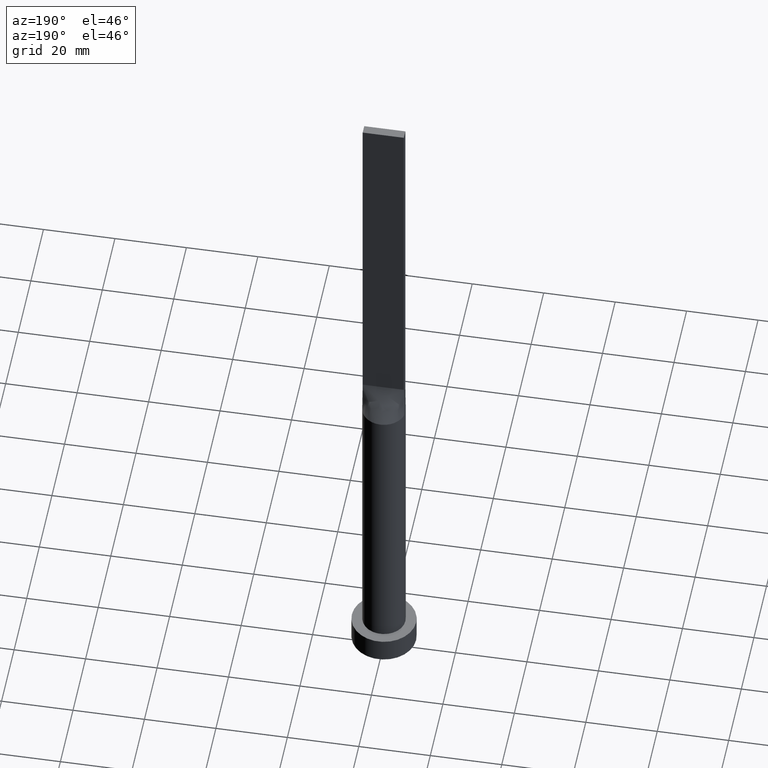
[diagram: clean part render]
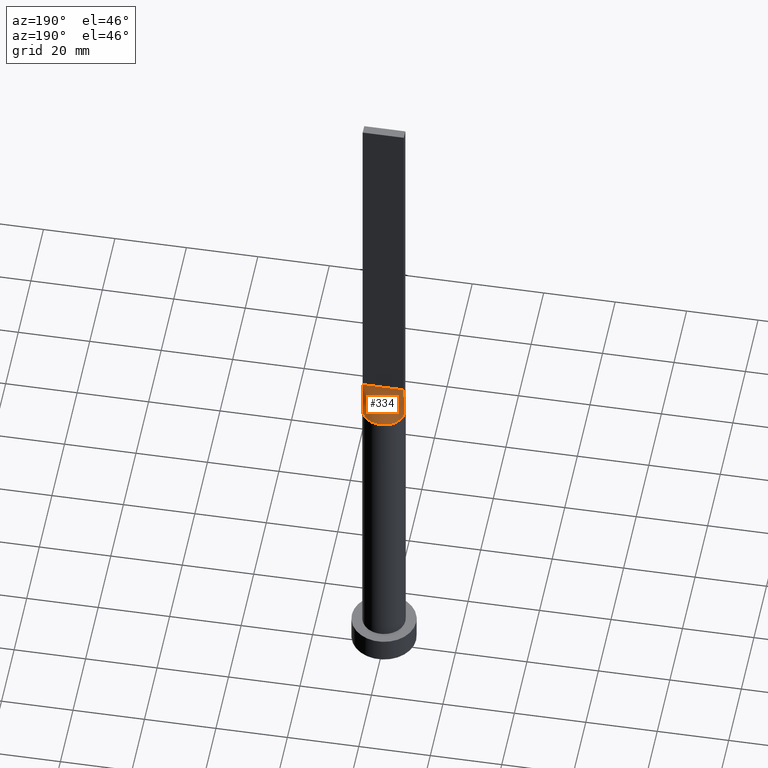
[diagram: same view with one face highlighted and labeled with its STEP entity id]
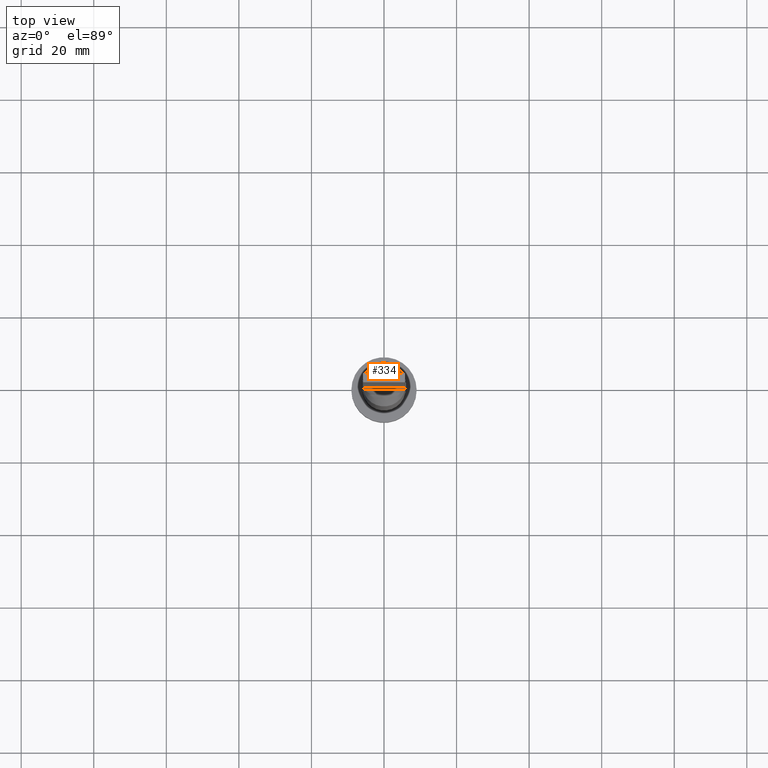
[diagram: same view with one face highlighted and labeled with its STEP entity id]
A machine part, auxiliary view. The second image highlights one B-rep face of the part: STEP entity #334.
A second angle (top view) of the same face is appended — the face is thin or edge-on in the first view.
In plain terms, the highlighted face is a freeform B-spline surface patch.
Its self-contained STEP definition (entity closure, byte-faithful):
#20 = CARTESIAN_POINT ( 'NONE',  ( -0.4791666666666711816, 1.250000000000000222, 100.0000000000000000 ) ) ;
#21 = CARTESIAN_POINT ( 'NONE',  ( 3.037647739454305995, 5.231880992812856235, 90.00000000000002842 ) ) ;
#24 = CARTESIAN_POINT ( 'NONE',  ( 5.038190104264874236, 3.311355329404293002, 90.00000000000004263 ) ) ;
#26 = CARTESIAN_POINT ( 'NONE',  ( 5.038190104264874236, 3.311355329404293002, 90.00000000000004263 ) ) ;
#28 = CARTESIAN_POINT ( 'NONE',  ( -5.270833333333333925, 1.250000000000000222, 100.0000000000000000 ) ) ;
#30 = CARTESIAN_POINT ( 'NONE',  ( -5.038190104264874236, 3.311355329404293446, 90.00000000000001421 ) ) ;
#37 = CARTESIAN_POINT ( 'NONE',  ( -0.4029827085191223790, 5.999999999999998224, 90.00000000000002842 ) ) ;
#42 = CARTESIAN_POINT ( 'NONE',  ( -5.759267569818392829, 1.752014689090956256, 90.00000000000002842 ) ) ;
#43 = VERTEX_POINT ( 'NONE', #543 ) ;
#44 = CARTESIAN_POINT ( 'NONE',  ( 5.806529091768402928, 1.262288932993131496, 95.00000000000000000 ) ) ;
#59 = LINE ( 'NONE', #519, #326 ) ;
#65 = CARTESIAN_POINT ( 'NONE',  ( 5.750000000000000000, 1.250000000000000222, 100.0000000000000000 ) ) ;
#68 = CARTESIAN_POINT ( 'NONE',  ( 0.9583333333333283743, 1.250000000000000222, 100.0000000000000000 ) ) ;
#71 = CARTESIAN_POINT ( 'NONE',  ( 4.791666666666664298, 1.250000000000000222, 100.0000000000000000 ) ) ;
#73 = CARTESIAN_POINT ( 'NONE',  ( 0.8058840496048939039, 5.959001506938069070, 90.00000000000002842 ) ) ;
#74 = B_SPLINE_SURFACE_WITH_KNOTS ( 'NONE', 3, 1, ( 
 ( #439, #65 ),
 ( #210, #482 ),
 ( #528, #71 ),
 ( #24, #248 ),
 ( #157, #169 ),
 ( #400, #492 ),
 ( #348, #212 ),
 ( #445, #207 ),
 ( #300, #68 ),
 ( #73, #256 ),
 ( #534, #254 ),
 ( #396, #435 ),
 ( #579, #20 ),
 ( #112, #161 ),
 ( #351, #205 ),
 ( #114, #356 ),
 ( #586, #76 ),
 ( #487, #398 ),
 ( #30, #392 ),
 ( #536, #252 ),
 ( #110, #28 ),
 ( #117, #303 ) ),
 .UNSPECIFIED., .F., .F., .F.,
 ( 4, 2, 2, 2, 2, 2, 2, 2, 2, 2, 4 ),
 ( 2, 2 ),
 ( 0.000000000000000000, 0.1249999999999999722, 0.2499999999999999445, 0.3749999999999999445, 0.4374999999999999445, 0.4999999999999998890, 0.5624999999999998890, 0.6249999999999998890, 0.7499999999999997780, 0.8749999999999998890, 1.000000000000000000 ),
 ( 0.000000000000000000, 1.000000000000000000 ),
 .UNSPECIFIED. ) ;
#76 = CARTESIAN_POINT ( 'NONE',  ( -2.395833333333335702, 1.250000000000000222, 100.0000000000000000 ) ) ;
#77 = CARTESIAN_POINT ( 'NONE',  ( 5.863058183536806744, 1.274577865986262326, 90.00000000000001421 ) ) ;
#79 = CARTESIAN_POINT ( 'NONE',  ( 5.586898165904734093, 2.266054396544147309, 90.00000000000002842 ) ) ;
#83 = VECTOR ( 'NONE', #484, 1000.000000000000000 ) ;
#104 = CARTESIAN_POINT ( 'NONE',  ( 5.750000000000000000, 1.250000000000000222, 100.0000000000000000 ) ) ;
#106 = ORIENTED_EDGE ( 'NONE', *, *, #108, .T. ) ;
#108 = EDGE_CURVE ( 'NONE', #43, #540, #168, .T. ) ;
#110 = CARTESIAN_POINT ( 'NONE',  ( -5.759267569818392829, 1.752014689090956256, 90.00000000000002842 ) ) ;
#111 = EDGE_LOOP ( 'NONE', ( #106, #143, #284, #460 ) ) ;
#112 = CARTESIAN_POINT ( 'NONE',  ( -1.587717880441007035, 5.799853445840308375, 90.00000000000001421 ) ) ;
#114 = CARTESIAN_POINT ( 'NONE',  ( -3.037647739454304663, 5.231880992812857123, 90.00000000000007105 ) ) ;
#117 = CARTESIAN_POINT ( 'NONE',  ( -5.863058183536805856, 1.274577865986265435, 90.00000000000001421 ) ) ;
#136 = VERTEX_POINT ( 'NONE', #502 ) ;
#143 = ORIENTED_EDGE ( 'NONE', *, *, #239, .T. ) ;
#157 = CARTESIAN_POINT ( 'NONE',  ( 4.659826596530313836, 3.842755878357678068, 90.00000000000002842 ) ) ;
#161 = CARTESIAN_POINT ( 'NONE',  ( -0.9583333333333372561, 1.250000000000000222, 100.0000000000000000 ) ) ;
#168 = B_SPLINE_CURVE_WITH_KNOTS ( 'NONE', 3,
 ( #77, #255, #79, #26, #539, #263, #21, #537, #306, #206, #265, #37, #225, #453, #218, #369, #412, #312, #271, #459, #42, #174 ),
 .UNSPECIFIED., .F., .F.,
 ( 4, 2, 2, 2, 2, 2, 2, 2, 2, 2, 4 ),
 ( 0.000000000000000000, 0.1249999999999999722, 0.2499999999999999445, 0.3749999999999999445, 0.4374999999999999445, 0.4999999999999998890, 0.5624999999999998890, 0.6249999999999998890, 0.7499999999999997780, 0.8749999999999998890, 1.000000000000000000 ),
 .UNSPECIFIED. ) ;
#169 = CARTESIAN_POINT ( 'NONE',  ( 3.354166666666662966, 1.250000000000000222, 100.0000000000000000 ) ) ;
#174 = CARTESIAN_POINT ( 'NONE',  ( -5.863058287509749888, 1.274577880478287017, 90.00000000000001421 ) ) ;
#205 = CARTESIAN_POINT ( 'NONE',  ( -1.197916666666670515, 1.250000000000000222, 100.0000000000000000 ) ) ;
#206 = CARTESIAN_POINT ( 'NONE',  ( 0.8058840496048939039, 5.959001506938069070, 90.00000000000002842 ) ) ;
#207 = CARTESIAN_POINT ( 'NONE',  ( 1.197916666666661856, 1.250000000000000222, 100.0000000000000000 ) ) ;
#210 = CARTESIAN_POINT ( 'NONE',  ( 5.759267569818392829, 1.752014689090955590, 90.00000000000002842 ) ) ;
#212 = CARTESIAN_POINT ( 'NONE',  ( 1.916666666666662078, 1.250000000000000222, 100.0000000000000000 ) ) ;
#215 = FACE_OUTER_BOUND ( 'NONE', #111, .T. ) ;
#218 = CARTESIAN_POINT ( 'NONE',  ( -1.966519853258818173, 5.681792876789067748, 90.00000000000001421 ) ) ;
#225 = CARTESIAN_POINT ( 'NONE',  ( -0.8058840496048931268, 5.959001506938069070, 90.00000000000001421 ) ) ;
#239 = EDGE_CURVE ( 'NONE', #540, #136, #59, .T. ) ;
#240 = VERTEX_POINT ( 'NONE', #104 ) ;
#248 = CARTESIAN_POINT ( 'NONE',  ( 3.833333333333329929, 1.250000000000000222, 100.0000000000000000 ) ) ;
#252 = CARTESIAN_POINT ( 'NONE',  ( -4.791666666666666963, 1.250000000000000222, 100.0000000000000000 ) ) ;
#254 = CARTESIAN_POINT ( 'NONE',  ( 0.2395833333333281245, 1.250000000000000222, 100.0000000000000000 ) ) ;
#255 = CARTESIAN_POINT ( 'NONE',  ( 5.759267569818392829, 1.752014689090955590, 90.00000000000002842 ) ) ;
#256 = CARTESIAN_POINT ( 'NONE',  ( 0.4791666666666616337, 1.250000000000000222, 100.0000000000000000 ) ) ;
#260 = CARTESIAN_POINT ( 'NONE',  ( -5.750000000000000000, 1.250000000000000222, 100.0000000000000000 ) ) ;
#263 = CARTESIAN_POINT ( 'NONE',  ( 3.660567483996337579, 4.804269179125218336, 90.00000000000002842 ) ) ;
#265 = CARTESIAN_POINT ( 'NONE',  ( 0.4029827085191226566, 5.999999999999999112, 90.00000000000002842 ) ) ;
#271 = CARTESIAN_POINT ( 'NONE',  ( -5.038190104264874236, 3.311355329404293446, 90.00000000000001421 ) ) ;
#273 = LINE ( 'NONE', #44, #395 ) ;
#284 = ORIENTED_EDGE ( 'NONE', *, *, #378, .F. ) ;
#300 = CARTESIAN_POINT ( 'NONE',  ( 1.587717880441007479, 5.799853445840305710, 90.00000000000000000 ) ) ;
#303 = CARTESIAN_POINT ( 'NONE',  ( -5.750000000000000000, 1.250000000000000222, 100.0000000000000000 ) ) ;
#306 = CARTESIAN_POINT ( 'NONE',  ( 1.587717880441007479, 5.799853445840305710, 90.00000000000000000 ) ) ;
#312 = CARTESIAN_POINT ( 'NONE',  ( -4.659826596530312948, 3.842755878357679844, 90.00000000000001421 ) ) ;
#326 = VECTOR ( 'NONE', #524, 1000.000000000000114 ) ;
#334 = ADVANCED_FACE ( 'NONE', ( #215 ), #74, .T. ) ;
#348 = CARTESIAN_POINT ( 'NONE',  ( 3.037647739454305995, 5.231880992812856235, 90.00000000000002842 ) ) ;
#351 = CARTESIAN_POINT ( 'NONE',  ( -1.966519853258818173, 5.681792876789067748, 90.00000000000001421 ) ) ;
#356 = CARTESIAN_POINT ( 'NONE',  ( -1.916666666666669849, 1.250000000000000222, 100.0000000000000000 ) ) ;
#364 = DIRECTION ( 'NONE',  ( -0.01130506171853812650, -0.002457622112725661723, 0.9999330755971076456 ) ) ;
#369 = CARTESIAN_POINT ( 'NONE',  ( -3.037647739454304663, 5.231880992812857123, 90.00000000000007105 ) ) ;
#378 = EDGE_CURVE ( 'NONE', #240, #136, #390, .T. ) ;
#390 = LINE ( 'NONE', #260, #83 ) ;
#392 = CARTESIAN_POINT ( 'NONE',  ( -3.833333333333334370, 1.250000000000000222, 100.0000000000000000 ) ) ;
#395 = VECTOR ( 'NONE', #364, 1000.000000000000114 ) ;
#396 = CARTESIAN_POINT ( 'NONE',  ( -0.4029827085191223790, 5.999999999999998224, 90.00000000000002842 ) ) ;
#398 = CARTESIAN_POINT ( 'NONE',  ( -3.354166666666667851, 1.250000000000000222, 100.0000000000000000 ) ) ;
#400 = CARTESIAN_POINT ( 'NONE',  ( 3.660567483996337579, 4.804269179125218336, 90.00000000000002842 ) ) ;
#412 = CARTESIAN_POINT ( 'NONE',  ( -3.660567483996338023, 4.804269179125219225, 90.00000000000005684 ) ) ;
#435 = CARTESIAN_POINT ( 'NONE',  ( -0.2395833333333383663, 1.250000000000000222, 100.0000000000000000 ) ) ;
#439 = CARTESIAN_POINT ( 'NONE',  ( 5.863058183536806744, 1.274577865986262104, 90.00000000000001421 ) ) ;
#445 = CARTESIAN_POINT ( 'NONE',  ( 1.966519853258819062, 5.681792876789066860, 90.00000000000002842 ) ) ;
#453 = CARTESIAN_POINT ( 'NONE',  ( -1.587717880441007035, 5.799853445840308375, 90.00000000000001421 ) ) ;
#459 = CARTESIAN_POINT ( 'NONE',  ( -5.586898165904732316, 2.266054396544148197, 90.00000000000002842 ) ) ;
#460 = ORIENTED_EDGE ( 'NONE', *, *, #574, .F. ) ;
#482 = CARTESIAN_POINT ( 'NONE',  ( 5.270833333333332149, 1.250000000000000222, 100.0000000000000000 ) ) ;
#484 = DIRECTION ( 'NONE',  ( -1.000000000000000000, -0.000000000000000000, -0.000000000000000000 ) ) ;
#487 = CARTESIAN_POINT ( 'NONE',  ( -4.659826596530312948, 3.842755878357679844, 90.00000000000001421 ) ) ;
#492 = CARTESIAN_POINT ( 'NONE',  ( 2.395833333333328596, 1.250000000000000222, 100.0000000000000000 ) ) ;
#502 = CARTESIAN_POINT ( 'NONE',  ( -5.750000000000000000, 1.250000000000000222, 100.0000000000000000 ) ) ;
#519 = CARTESIAN_POINT ( 'NONE',  ( -5.806529091768402928, 1.262288932993132606, 95.00000000000000000 ) ) ;
#524 = DIRECTION ( 'NONE',  ( 0.01130506171853803803, -0.002457622112725964866, 0.9999330755971076456 ) ) ;
#528 = CARTESIAN_POINT ( 'NONE',  ( 5.586898165904734093, 2.266054396544147309, 90.00000000000002842 ) ) ;
#534 = CARTESIAN_POINT ( 'NONE',  ( 0.4029827085191226566, 5.999999999999999112, 90.00000000000002842 ) ) ;
#536 = CARTESIAN_POINT ( 'NONE',  ( -5.586898165904732316, 2.266054396544148197, 90.00000000000002842 ) ) ;
#537 = CARTESIAN_POINT ( 'NONE',  ( 1.966519853258819062, 5.681792876789066860, 90.00000000000002842 ) ) ;
#539 = CARTESIAN_POINT ( 'NONE',  ( 4.659826596530313836, 3.842755878357678068, 90.00000000000002842 ) ) ;
#540 = VERTEX_POINT ( 'NONE', #592 ) ;
#543 = CARTESIAN_POINT ( 'NONE',  ( 5.863058183536806744, 1.274577865986262326, 90.00000000000001421 ) ) ;
#574 = EDGE_CURVE ( 'NONE', #43, #240, #273, .T. ) ;
#579 = CARTESIAN_POINT ( 'NONE',  ( -0.8058840496048931268, 5.959001506938069070, 90.00000000000001421 ) ) ;
#586 = CARTESIAN_POINT ( 'NONE',  ( -3.660567483996338023, 4.804269179125219225, 90.00000000000005684 ) ) ;
#592 = CARTESIAN_POINT ( 'NONE',  ( -5.863058287509749888, 1.274577880478287017, 90.00000000000001421 ) ) ;